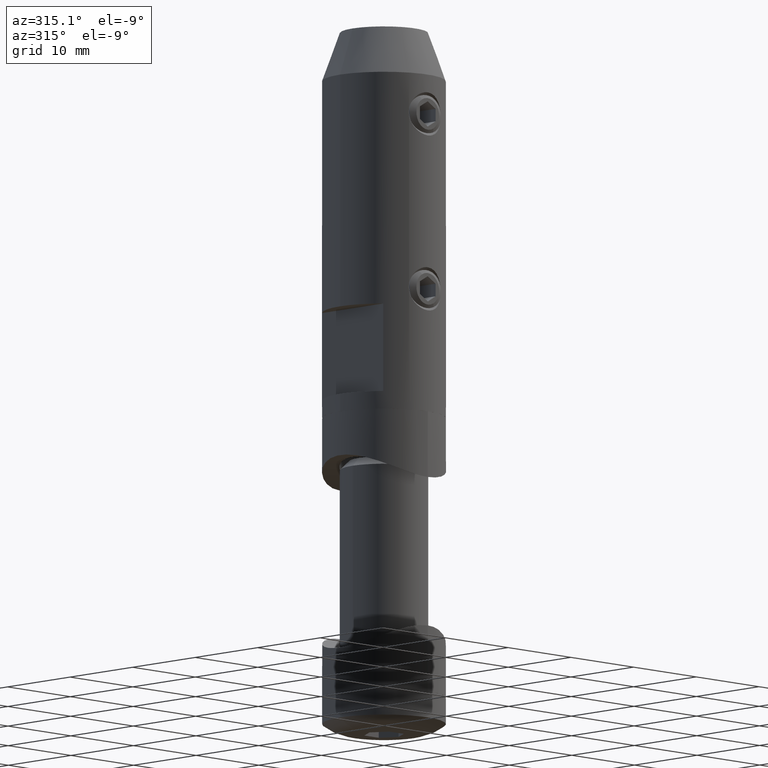
[diagram: clean part render]
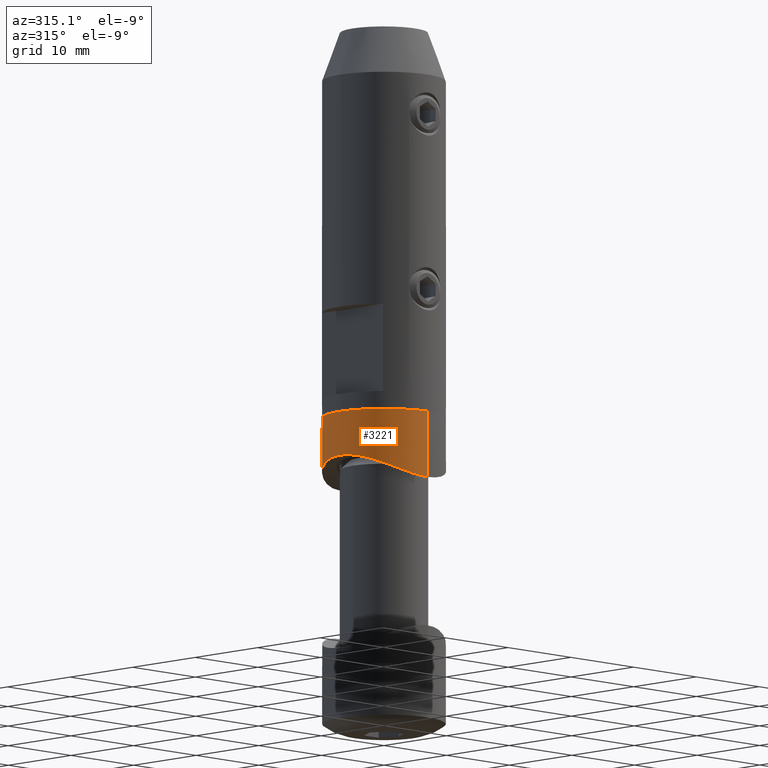
[diagram: same view with one face highlighted and labeled with its STEP entity id]
A machine part, auxiliary view. The second image highlights one B-rep face of the part: STEP entity #3221.
In plain terms, the highlighted cylindrical surface (partial cylindrical patch) has radius 7 mm, axis along (0, -0, 1).
Its self-contained STEP definition (entity closure, byte-faithful):
#68 = CARTESIAN_POINT ( 'NONE',  ( -7.000000000000254907, -8.282557552136786819E-30, 15.00000000000000000 ) ) ;
#122 = LINE ( 'NONE', #13471, #11894 ) ;
#150 = CARTESIAN_POINT ( 'NONE',  ( 1.161837405269506185, 6.906864965397544687, 5.059091500456442958 ) ) ;
#359 = CARTESIAN_POINT ( 'NONE',  ( -0.9560197849101003120, 6.950041120657822091, 5.031967993460270350 ) ) ;
#506 = CARTESIAN_POINT ( 'NONE',  ( 7.000000000000004441, -5.723021685032325300E-14, 7.514718625761387827 ) ) ;
#765 = FACE_OUTER_BOUND ( 'NONE', #18485, .T. ) ;
#1075 = CARTESIAN_POINT ( 'NONE',  ( -7.000000000000000000, -8.282903418160179087E-30, 2.159148023590378122E-34 ) ) ;
#1195 = DIRECTION ( 'NONE',  ( 3.084497176557682421E-35, 3.084497176557682421E-35, 1.000000000000000000 ) ) ;
#1324 = DIRECTION ( 'NONE',  ( 1.000000000000000000, 1.183291357831474618E-30, 2.445028249710268746E-35 ) ) ;
#1811 = CARTESIAN_POINT ( 'NONE',  ( -2.320867787877572308, 6.619896804541308022, 5.238836366385117849 ) ) ;
#1879 = CARTESIAN_POINT ( 'NONE',  ( 0.4606742574264122703, 6.988804917288322649, 5.007135663298367234 ) ) ;
#2022 = CARTESIAN_POINT ( 'NONE',  ( 7.000000000000004441, -5.723021685032325300E-14, 7.514718625761387827 ) ) ;
#2999 = DIRECTION ( 'NONE',  ( -3.084497176557682421E-35, -3.084497176557682421E-35, -1.000000000000000000 ) ) ;
#3188 = CARTESIAN_POINT ( 'NONE',  ( -3.163060452404388823, 6.261350458648621498, 5.455611984914543022 ) ) ;
#3221 = ADVANCED_FACE ( 'NONE', ( #765 ), #19511, .T. ) ;
#3254 = CARTESIAN_POINT ( 'NONE',  ( 5.548354116399063507, 4.273845609058724015, 6.500402019132683229 ) ) ;
#3320 = CARTESIAN_POINT ( 'NONE',  ( -6.626362017835187856, 2.301643078103948525, 7.217131248517889119 ) ) ;
#3431 = VERTEX_POINT ( 'NONE', #506 ) ;
#3456 = CARTESIAN_POINT ( 'NONE',  ( 0.9299979417929800096, 6.941953527043351890, 5.036862177057030543 ) ) ;
#3684 = ORIENTED_EDGE ( 'NONE', *, *, #11812, .T. ) ;
#3739 = CARTESIAN_POINT ( 'NONE',  ( 7.000000000000002665, 0.2377497690112485296, 7.514718625761418025 ) ) ;
#3960 = CIRCLE ( 'NONE', #10962, 7.000000000000254907 ) ;
#4535 = LINE ( 'NONE', #68, #19913 ) ;
#4697 = ORIENTED_EDGE ( 'NONE', *, *, #8609, .F. ) ;
#4720 = CARTESIAN_POINT ( 'NONE',  ( 4.300644525004608809, 5.541751699449870117, 5.867539799732574224 ) ) ;
#4783 = CARTESIAN_POINT ( 'NONE',  ( 6.056392610917076702, 3.538246314894518463, 6.812717904675321456 ) ) ;
#4847 = CARTESIAN_POINT ( 'NONE',  ( 0.2214254515694320802, 7.000523600136869362, 4.999666800438288483 ) ) ;
#5054 = CARTESIAN_POINT ( 'NONE',  ( 6.987680589103055340, 0.4774160419172169822, 7.504514137652255279 ) ) ;
#5268 = CARTESIAN_POINT ( 'NONE',  ( 6.763632749686718348, 1.862951637489550949, 7.324308792532637113 ) ) ;
#5368 = ORIENTED_EDGE ( 'NONE', *, *, #14411, .T. ) ;
#6204 = CARTESIAN_POINT ( 'NONE',  ( -6.765964257790813896, 1.854074947819542851, 7.326140929028419180 ) ) ;
#6391 = CARTESIAN_POINT ( 'NONE',  ( -6.058683391609648972, 3.534678415989362055, 6.814171574157921185 ) ) ;
#6397 = DIRECTION ( 'NONE',  ( -3.084497176557682421E-35, -3.084497176557682421E-35, -1.000000000000000000 ) ) ;
#7734 = CARTESIAN_POINT ( 'NONE',  ( -6.273426768740709925, 3.138526888149929306, 6.961660900673267705 ) ) ;
#7795 = CARTESIAN_POINT ( 'NONE',  ( -5.557449205181134388, 4.279761006885696162, 6.502534725485556777 ) ) ;
#8070 = CARTESIAN_POINT ( 'NONE',  ( 6.939710044015401813, 0.9465889273593277586, 7.465283568994790286 ) ) ;
#8609 = EDGE_CURVE ( 'NONE', #17707, #19534, #4535, .T. ) ;
#9282 = CARTESIAN_POINT ( 'NONE',  ( -3.558049577198596491, 6.044979889134974194, 5.583740064937725123 ) ) ;
#9405 = CARTESIAN_POINT ( 'NONE',  ( 3.148837931513962740, 6.268700464065021016, 5.451243665863186649 ) ) ;
#9471 = CARTESIAN_POINT ( 'NONE',  ( 6.269507857867425926, 3.146234964335936635, 6.958936000710156833 ) ) ;
#9535 = CARTESIAN_POINT ( 'NONE',  ( -6.951654864948971557, 0.9435893643243959961, 7.474239144838221272 ) ) ;
#10675 = DIRECTION ( 'NONE',  ( -3.084497176557682421E-35, -3.084497176557682421E-35, -1.000000000000000000 ) ) ;
#10887 = CARTESIAN_POINT ( 'NONE',  ( 4.644332166944091789, 5.256203776964100349, 6.022340495122413095 ) ) ;
#10962 = AXIS2_PLACEMENT_3D ( 'NONE', #13364, #1195, #1324 ) ;
#11078 = CARTESIAN_POINT ( 'NONE',  ( -5.275968328933357654, 4.621823535817484618, 6.341468294499327918 ) ) ;
#11812 = EDGE_CURVE ( 'NONE', #3431, #18826, #122, .T. ) ;
#11894 = VECTOR ( 'NONE', #2999, 1000.000000000000000 ) ;
#12272 = AXIS2_PLACEMENT_3D ( 'NONE', #15587, #6397, #15518 ) ;
#12374 = CARTESIAN_POINT ( 'NONE',  ( -7.000000000000284217, -9.244463733058732095E-30, 7.514718625761432236 ) ) ;
#12443 = CARTESIAN_POINT ( 'NONE',  ( 5.264305234839995684, 4.619207733526296877, 6.340099089871694460 ) ) ;
#12507 = CARTESIAN_POINT ( 'NONE',  ( -1.868620718978700967, 6.762048655295059163, 5.150117211037595233 ) ) ;
#12592 = CARTESIAN_POINT ( 'NONE',  ( 7.000000000000000000, 8.572527594031556020E-16, -2.159148023590378122E-34 ) ) ;
#12647 = CARTESIAN_POINT ( 'NONE',  ( -4.649793783628306976, 5.251334342229204033, 6.024906302003863345 ) ) ;
#13364 = CARTESIAN_POINT ( 'NONE',  ( 0.000000000000000000, 0.000000000000000000, 0.000000000000000000 ) ) ;
#13471 = CARTESIAN_POINT ( 'NONE',  ( 7.000000000000254907, 8.572527594031867620E-16, 15.00000000000000000 ) ) ;
#13917 = CARTESIAN_POINT ( 'NONE',  ( 2.301034675769405347, 6.626992172020193195, 5.234467967776039288 ) ) ;
#13976 = CARTESIAN_POINT ( 'NONE',  ( 3.547949583967521470, 6.051331174083297348, 5.580098523014664913 ) ) ;
#14036 = CARTESIAN_POINT ( 'NONE',  ( -0.4907799386418351673, 6.998898104596894321, 5.000701205087874079 ) ) ;
#14313 = CARTESIAN_POINT ( 'NONE',  ( 6.904112164166043897, 1.177949242828133514, 7.436307939935931977 ) ) ;
#14411 = EDGE_CURVE ( 'NONE', #17707, #3431, #17184, .T. ) ;
#15518 = DIRECTION ( 'NONE',  ( -1.000000000000000000, -1.183291357831474618E-30, 0.000000000000000000 ) ) ;
#15587 = CARTESIAN_POINT ( 'NONE',  ( 0.000000000000000000, 4.819526838371378783E-34, 15.00000000000000000 ) ) ;
#16595 = ORIENTED_EDGE ( 'NONE', *, *, #17895, .T. ) ;
#17145 = CARTESIAN_POINT ( 'NONE',  ( 5.114907288801578744, 4.784046224947594794, 6.259948611788000328 ) ) ;
#17184 = B_SPLINE_CURVE_WITH_KNOTS ( 'NONE', 3,
 ( #12374, #17215, #9535, #6204, #3320, #7734, #6391, #7795, #11078, #12647, #18558, #9282, #3188, #1811, #12507, #359, #14036, #4847, #1879, #3456, #150, #18502, #13917, #9405, #13976, #4720, #10887, #17145, #12443, #3254, #18687, #4783, #9471, #18960, #5268, #14313, #8070, #5054, #3739, #2022 ),
 .UNSPECIFIED., .F., .F.,
 ( 4, 2, 2, 2, 2, 2, 2, 2, 2, 2, 2, 2, 2, 2, 2, 2, 2, 2, 2, 4 ),
 ( 0.000000000000000000, 0.001408202241973139767, 0.002816404483946279534, 0.004224606725919418868, 0.005632808967892559068, 0.007041011209865698402, 0.008449213451838837735, 0.009857415693811977936, 0.01126561793578511814, 0.01196971905677168650, 0.01267382017775825660, 0.01408202241973139680, 0.01549022466170453700, 0.01689842690367767547, 0.01760252802466424557, 0.01830662914565081567, 0.01971483138762395587, 0.02112303362959709954, 0.02182713475058366964, 0.02253123587157023974 ),
 .UNSPECIFIED. ) ;
#17215 = CARTESIAN_POINT ( 'NONE',  ( -7.000000000000284217, 0.4777743709310715570, 7.514718625761435788 ) ) ;
#17707 = VERTEX_POINT ( 'NONE', #18214 ) ;
#17895 = EDGE_CURVE ( 'NONE', #18826, #19534, #3960, .T. ) ;
#18214 = CARTESIAN_POINT ( 'NONE',  ( -7.000000000000284217, -9.244463733058732095E-30, 7.514718625761432236 ) ) ;
#18485 = EDGE_LOOP ( 'NONE', ( #5368, #3684, #16595, #4697 ) ) ;
#18502 = CARTESIAN_POINT ( 'NONE',  ( 1.849171311116351024, 6.767508011685089642, 5.146708090684417591 ) ) ;
#18558 = CARTESIAN_POINT ( 'NONE',  ( -4.301019072167645341, 5.541004745955334876, 5.867901364009729726 ) ) ;
#18687 = CARTESIAN_POINT ( 'NONE',  ( 5.682708424258758662, 4.093481962274591268, 6.580428040297160663 ) ) ;
#18826 = VERTEX_POINT ( 'NONE', #12592 ) ;
#18960 = CARTESIAN_POINT ( 'NONE',  ( 6.622956682125623828, 2.311269784633307012, 7.214556823597193969 ) ) ;
#19511 = CYLINDRICAL_SURFACE ( 'NONE', #12272, 7.000000000000254907 ) ;
#19534 = VERTEX_POINT ( 'NONE', #1075 ) ;
#19913 = VECTOR ( 'NONE', #10675, 1000.000000000000000 ) ;